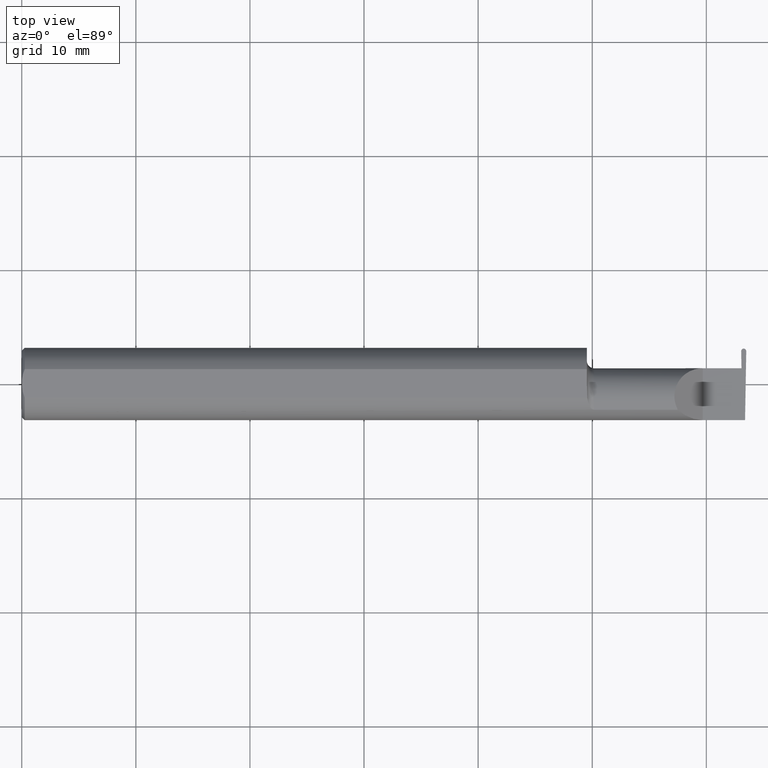
[diagram: clean part render]
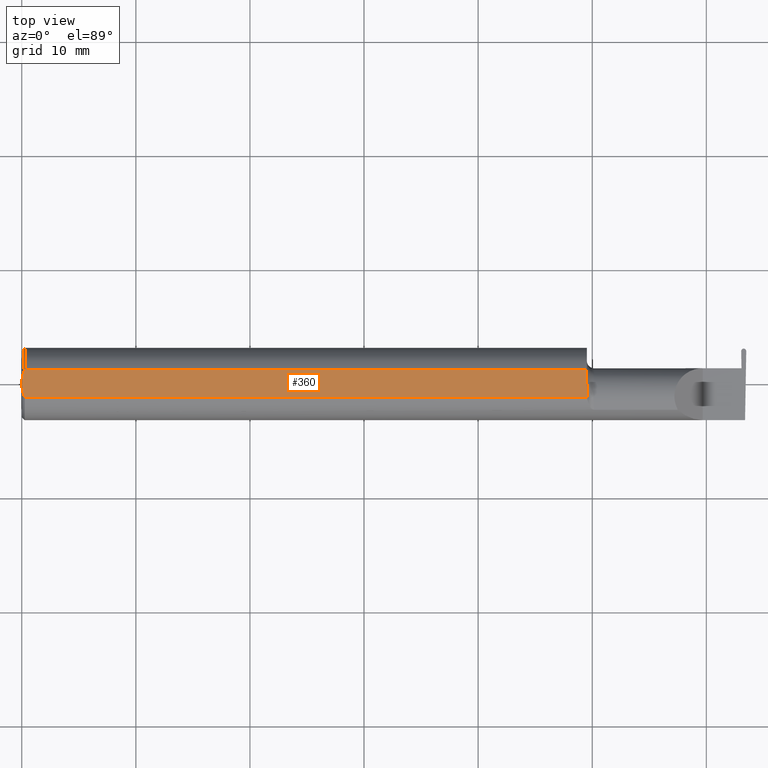
[diagram: same view with one face highlighted and labeled with its STEP entity id]
A machine part, top view. The second image highlights one B-rep face of the part: STEP entity #360.
In plain terms, the highlighted planar face has unit normal (0, 0, 1).
Its self-contained STEP definition (entity closure, byte-faithful):
#8 = AXIS2_PLACEMENT_3D ( 'NONE', #60, #267, #539 ) ;
#22 = CARTESIAN_POINT ( 'NONE',  ( 0.000000000000000000, 0.04898979485566374442, 0.1149999999999999217 ) ) ;
#34 = VERTEX_POINT ( 'NONE', #659 ) ;
#44 = CARTESIAN_POINT ( 'NONE',  ( 0.000000000000000000, 3.414809992080329023E-17, 0.1149999999999999217 ) ) ;
#49 = LINE ( 'NONE', #482, #335 ) ;
#60 = CARTESIAN_POINT ( 'NONE',  ( 2.753179778023443269, 0.1250000000000000278, 0.1149999999999999217 ) ) ;
#61 = CARTESIAN_POINT ( 'NONE',  ( 1.951184456069788187, -0.03277259381711294245, 0.1149999999999999356 ) ) ;
#64 = ORIENTED_EDGE ( 'NONE', *, *, #405, .T. ) ;
#74 = CARTESIAN_POINT ( 'NONE',  ( 0.000000000000000000, 3.414809992080329023E-17, 0.1149999999999999217 ) ) ;
#79 = B_SPLINE_CURVE_WITH_KNOTS ( 'NONE', 3,
 ( #694, #253, #239, #578 ),
 .UNSPECIFIED., .F., .F.,
 ( 4, 4 ),
 ( 0.002331518380383306322, 0.003601362264757408584 ),
 .UNSPECIFIED. ) ;
#89 = EDGE_CURVE ( 'NONE', #218, #34, #445, .T. ) ;
#98 = B_SPLINE_CURVE_WITH_KNOTS ( 'NONE', 3,
 ( #199, #368, #61, #221, #116, #431 ),
 .UNSPECIFIED., .F., .F.,
 ( 4, 2, 4 ),
 ( 0.009319464280412597182, 0.009934044568948198831, 0.01054862485748380048 ),
 .UNSPECIFIED. ) ;
#114 = VECTOR ( 'NONE', #245, 39.37007874015748143 ) ;
#116 = CARTESIAN_POINT ( 'NONE',  ( 1.950000000000000178, -0.008475349815581094057, 0.1149999999999999356 ) ) ;
#124 = CARTESIAN_POINT ( 'NONE',  ( 0.004414142251465132810, -0.03315347577847933824, 0.1149999999999999356 ) ) ;
#139 = ORIENTED_EDGE ( 'NONE', *, *, #524, .F. ) ;
#142 = ORIENTED_EDGE ( 'NONE', *, *, #689, .T. ) ;
#176 = CARTESIAN_POINT ( 'NONE',  ( 1.541666659510484467E-16, -0.008419750986449443114, 0.1149999999999999356 ) ) ;
#199 = CARTESIAN_POINT ( 'NONE',  ( 1.951278290187167697, -0.04898979485482139740, 0.1149999999999999217 ) ) ;
#203 = LINE ( 'NONE', #415, #114 ) ;
#209 = DIRECTION ( 'NONE',  ( 6.412988513727268357E-17, 1.000000000000000000, -0.000000000000000000 ) ) ;
#218 = VERTEX_POINT ( 'NONE', #570 ) ;
#221 = CARTESIAN_POINT ( 'NONE',  ( 1.950474906351709059, -0.01657217611496013959, 0.1149999999999999217 ) ) ;
#234 = DIRECTION ( 'NONE',  ( -1.000000000000000000, -0.000000000000000000, -0.000000000000000000 ) ) ;
#239 = CARTESIAN_POINT ( 'NONE',  ( 0.003880275146595849479, 0.03337499979622342988, 0.1149999999999999217 ) ) ;
#245 = DIRECTION ( 'NONE',  ( 1.000000000000000000, 0.000000000000000000, 0.000000000000000000 ) ) ;
#253 = CARTESIAN_POINT ( 'NONE',  ( 1.642610067308552155E-16, 0.01684316307400865464, 0.1149999999999999217 ) ) ;
#267 = DIRECTION ( 'NONE',  ( 0.000000000000000000, 0.000000000000000000, 1.000000000000000000 ) ) ;
#273 = EDGE_CURVE ( 'NONE', #307, #34, #79, .T. ) ;
#307 = VERTEX_POINT ( 'NONE', #44 ) ;
#335 = VECTOR ( 'NONE', #209, 39.37007874015748143 ) ;
#354 = CARTESIAN_POINT ( 'NONE',  ( 0.01000000000000042348, -0.04898979485566374442, 0.1149999999999999217 ) ) ;
#360 = ADVANCED_FACE ( 'NONE', ( #535 ), #543, .T. ) ;
#363 = VERTEX_POINT ( 'NONE', #434 ) ;
#368 = CARTESIAN_POINT ( 'NONE',  ( 1.951395249340555971, -0.04087966525208246160, 0.1149999999999999356 ) ) ;
#374 = VECTOR ( 'NONE', #234, 39.37007874015748143 ) ;
#397 = ORIENTED_EDGE ( 'NONE', *, *, #89, .T. ) ;
#405 = EDGE_CURVE ( 'NONE', #363, #218, #49, .T. ) ;
#409 = VERTEX_POINT ( 'NONE', #647 ) ;
#415 = CARTESIAN_POINT ( 'NONE',  ( 0.000000000000000000, -0.04898979485566374442, 0.1149999999999999217 ) ) ;
#431 = CARTESIAN_POINT ( 'NONE',  ( 1.949999999999999956, -0.0003651515414570241560, 0.1149999999999999217 ) ) ;
#434 = CARTESIAN_POINT ( 'NONE',  ( 1.949999999999999956, -0.0003651515414570241560, 0.1149999999999999217 ) ) ;
#445 = LINE ( 'NONE', #22, #374 ) ;
#482 = CARTESIAN_POINT ( 'NONE',  ( 1.949999999999999956, 0.1250000000000000555, 0.1149999999999999217 ) ) ;
#490 = ORIENTED_EDGE ( 'NONE', *, *, #661, .T. ) ;
#510 = CARTESIAN_POINT ( 'NONE',  ( 0.01000000000000042348, -0.04898979485566374442, 0.1149999999999999217 ) ) ;
#524 = EDGE_CURVE ( 'NONE', #540, #307, #599, .T. ) ;
#535 = FACE_OUTER_BOUND ( 'NONE', #649, .T. ) ;
#539 = DIRECTION ( 'NONE',  ( 1.000000000000000000, 0.000000000000000000, -0.000000000000000000 ) ) ;
#540 = VERTEX_POINT ( 'NONE', #354 ) ;
#543 = PLANE ( 'NONE',  #8 ) ;
#554 = CARTESIAN_POINT ( 'NONE',  ( 0.006956794985978487743, -0.04122489957750442163, 0.1149999999999999356 ) ) ;
#570 = CARTESIAN_POINT ( 'NONE',  ( 1.949999999999999956, 0.04898979485566374442, 0.1149999999999999217 ) ) ;
#578 = CARTESIAN_POINT ( 'NONE',  ( 0.01000000000000042348, 0.04898979485566374442, 0.1149999999999999217 ) ) ;
#588 = ORIENTED_EDGE ( 'NONE', *, *, #273, .F. ) ;
#599 = B_SPLINE_CURVE_WITH_KNOTS ( 'NONE', 3,
 ( #510, #554, #124, #663, #176, #74 ),
 .UNSPECIFIED., .F., .F.,
 ( 4, 2, 4 ),
 ( 0.001061950514642623312, 0.001696734447512964709, 0.002331518380383306322 ),
 .UNSPECIFIED. ) ;
#647 = CARTESIAN_POINT ( 'NONE',  ( 1.951278290187167697, -0.04898979485482139740, 0.1149999999999999217 ) ) ;
#649 = EDGE_LOOP ( 'NONE', ( #490, #142, #64, #397, #588, #139 ) ) ;
#659 = CARTESIAN_POINT ( 'NONE',  ( 0.01000000000000042348, 0.04898979485566374442, 0.1149999999999999217 ) ) ;
#661 = EDGE_CURVE ( 'NONE', #540, #409, #203, .T. ) ;
#663 = CARTESIAN_POINT ( 'NONE',  ( 0.0009328476361608245343, -0.01672844127736827086, 0.1149999999999999217 ) ) ;
#689 = EDGE_CURVE ( 'NONE', #409, #363, #98, .T. ) ;
#694 = CARTESIAN_POINT ( 'NONE',  ( 0.000000000000000000, 3.414809992080329023E-17, 0.1149999999999999217 ) ) ;